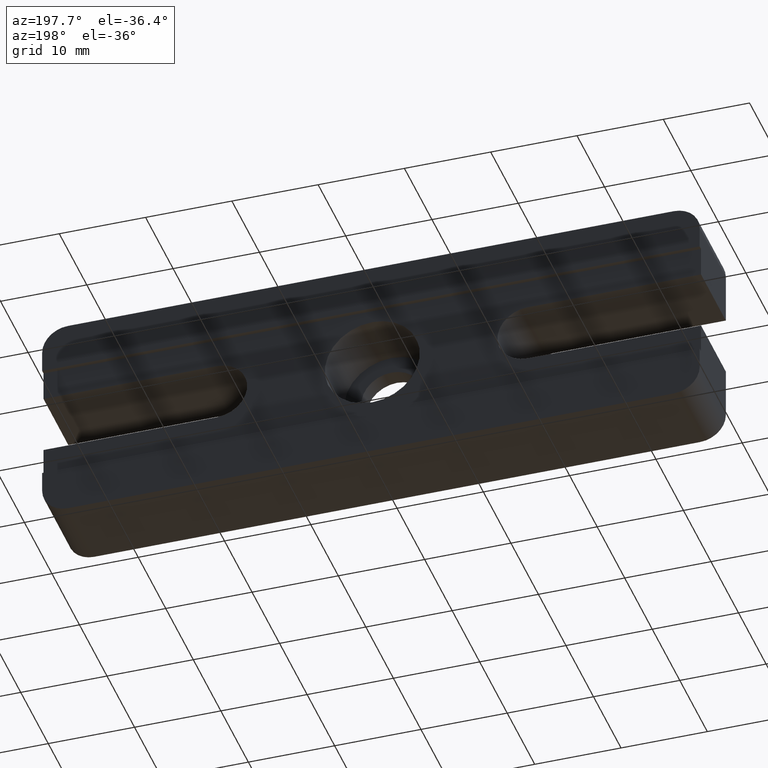
[diagram: clean part render]
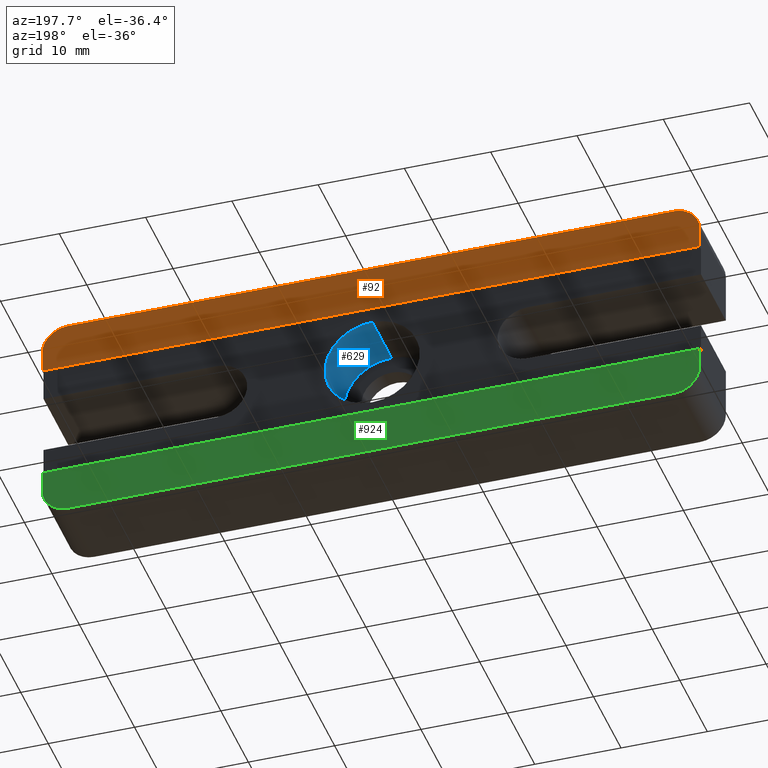
[diagram: same view with three faces highlighted in distinct colors, each labeled with its STEP entity id]
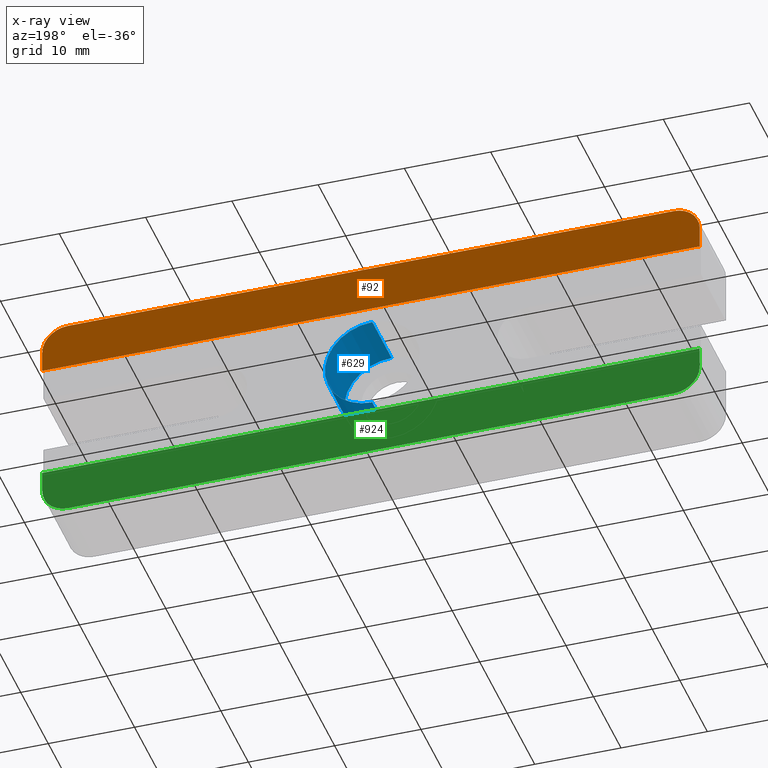
[diagram: x-ray of the same camera — body ghosted, the three highlighted faces saturated]
A machine part, auxiliary view with three faces highlighted in distinct colors.
The next image is the same camera in x-ray (body ghosted, the three faces saturated) — at least one of them is partly hidden behind the body in this view.
Their STEP definitions:

[orange] entity #92 — the highlighted planar face has unit normal (0, 1, -0).
#15 = DIRECTION ( 'NONE',  ( 0.0000000000000000000, 1.000000000000000000, -0.0000000000000000000 ) ) ;
#25 = EDGE_LOOP ( 'NONE', ( #569, #461, #436, #541, #184, #697 ) ) ;
#62 = FACE_OUTER_BOUND ( 'NONE', #25, .T. ) ;
#66 = CARTESIAN_POINT ( 'NONE',  ( 35.09999999999998000, 9.500000000000000000, 12.49999999999999800 ) ) ;
#70 = EDGE_CURVE ( 'NONE', #885, #194, #199, .T. ) ;
#88 = CARTESIAN_POINT ( 'NONE',  ( 35.09999999999998000, 9.500000000000000000, 9.499999999999916500 ) ) ;
#92 = ADVANCED_FACE ( 'NONE', ( #62 ), #868, .T. ) ;
#118 = DIRECTION ( 'NONE',  ( 1.156482317317872100E-014, 0.0000000000000000000, 1.000000000000000000 ) ) ;
#120 = AXIS2_PLACEMENT_3D ( 'NONE', #549, #891, #900 ) ;
#121 = EDGE_CURVE ( 'NONE', #677, #427, #131, .T. ) ;
#124 = VECTOR ( 'NONE', #507, 1000.000000000000000 ) ;
#131 = LINE ( 'NONE', #788, #124 ) ;
#147 = DIRECTION ( 'NONE',  ( 0.0000000000000000000, 1.000000000000000000, -0.0000000000000000000 ) ) ;
#155 = CARTESIAN_POINT ( 'NONE',  ( 38.09999999999991600, 9.500000000000000000, 7.000000000000004400 ) ) ;
#161 = DIRECTION ( 'NONE',  ( 1.000000000000000000, 0.0000000000000000000, 9.884464250580091000E-017 ) ) ;
#184 = ORIENTED_EDGE ( 'NONE', *, *, #70, .T. ) ;
#194 = VERTEX_POINT ( 'NONE', #384 ) ;
#199 = CIRCLE ( 'NONE', #360, 3.000000000000080800 ) ;
#221 = LINE ( 'NONE', #632, #522 ) ;
#242 = EDGE_CURVE ( 'NONE', #922, #885, #833, .T. ) ;
#249 = CARTESIAN_POINT ( 'NONE',  ( -38.10000000000006500, 9.500000000000000000, 9.499999999999994700 ) ) ;
#255 = CIRCLE ( 'NONE', #120, 2.999999999999995600 ) ;
#278 = EDGE_CURVE ( 'NONE', #895, #922, #255, .T. ) ;
#360 = AXIS2_PLACEMENT_3D ( 'NONE', #88, #147, #707 ) ;
#361 = DIRECTION ( 'NONE',  ( 0.0000000000000000000, 0.0000000000000000000, 1.000000000000000000 ) ) ;
#384 = CARTESIAN_POINT ( 'NONE',  ( 38.10000000000005800, 9.500000000000000000, 9.499999999999916500 ) ) ;
#427 = VERTEX_POINT ( 'NONE', #155 ) ;
#436 = ORIENTED_EDGE ( 'NONE', *, *, #278, .T. ) ;
#438 = CARTESIAN_POINT ( 'NONE',  ( -62.51947198304053200, 9.500000000000000000, 2.020352918042384900E-015 ) ) ;
#461 = ORIENTED_EDGE ( 'NONE', *, *, #670, .T. ) ;
#507 = DIRECTION ( 'NONE',  ( 1.000000000000000000, 0.0000000000000000000, 0.0000000000000000000 ) ) ;
#522 = VECTOR ( 'NONE', #701, 1000.000000000000000 ) ;
#541 = ORIENTED_EDGE ( 'NONE', *, *, #242, .T. ) ;
#549 = CARTESIAN_POINT ( 'NONE',  ( -35.10000000000006500, 9.500000000000000000, 9.499999999999994700 ) ) ;
#569 = ORIENTED_EDGE ( 'NONE', *, *, #121, .F. ) ;
#585 = CARTESIAN_POINT ( 'NONE',  ( -38.10000000000017200, 9.500000000000000000, -2.803865225482112100E-013 ) ) ;
#586 = CARTESIAN_POINT ( 'NONE',  ( -62.51947198304053200, 9.500000000000000000, 12.49999999999998900 ) ) ;
#632 = CARTESIAN_POINT ( 'NONE',  ( 38.10000000000017200, 9.500000000000000000, 1.282031394306783400E-012 ) ) ;
#661 = CARTESIAN_POINT ( 'NONE',  ( -35.10000000000006500, 9.500000000000000000, 12.49999999999999300 ) ) ;
#664 = CARTESIAN_POINT ( 'NONE',  ( -38.10000000000009400, 9.500000000000000000, 7.000000000000004400 ) ) ;
#670 = EDGE_CURVE ( 'NONE', #677, #895, #685, .T. ) ;
#677 = VERTEX_POINT ( 'NONE', #664 ) ;
#685 = LINE ( 'NONE', #585, #879 ) ;
#697 = ORIENTED_EDGE ( 'NONE', *, *, #839, .F. ) ;
#701 = DIRECTION ( 'NONE',  ( -1.272130549049676300E-014, 0.0000000000000000000, 1.000000000000000000 ) ) ;
#707 = DIRECTION ( 'NONE',  ( 0.0000000000000000000, 0.0000000000000000000, 1.000000000000000000 ) ) ;
#749 = AXIS2_PLACEMENT_3D ( 'NONE', #438, #15, #361 ) ;
#788 = CARTESIAN_POINT ( 'NONE',  ( -38.10000000000007200, 9.500000000000000000, 7.000000000000004400 ) ) ;
#806 = VECTOR ( 'NONE', #161, 1000.000000000000000 ) ;
#833 = LINE ( 'NONE', #586, #806 ) ;
#839 = EDGE_CURVE ( 'NONE', #427, #194, #221, .T. ) ;
#868 = PLANE ( 'NONE',  #749 ) ;
#879 = VECTOR ( 'NONE', #118, 1000.000000000000000 ) ;
#885 = VERTEX_POINT ( 'NONE', #66 ) ;
#891 = DIRECTION ( 'NONE',  ( 0.0000000000000000000, 1.000000000000000000, -0.0000000000000000000 ) ) ;
#895 = VERTEX_POINT ( 'NONE', #249 ) ;
#900 = DIRECTION ( 'NONE',  ( 0.0000000000000000000, 0.0000000000000000000, 1.000000000000000000 ) ) ;
#922 = VERTEX_POINT ( 'NONE', #661 ) ;

[blue] entity #629 — the highlighted cylindrical surface (partial cylindrical patch) has radius 5.5 mm, axis along (-0, 1, -0).
#27 = CARTESIAN_POINT ( 'NONE',  ( 0.0000000000000000000, 2.000000000000000000, 5.500000000000000000 ) ) ;
#47 = CARTESIAN_POINT ( 'NONE',  ( 6.735557395310442000E-016, 9.000000000000000000, -5.500000000000000000 ) ) ;
#87 = CARTESIAN_POINT ( 'NONE',  ( 0.0000000000000000000, 9.000000000000000000, 5.500000000000000000 ) ) ;
#91 = CARTESIAN_POINT ( 'NONE',  ( 0.0000000000000000000, 2.000000000000000000, 0.0000000000000000000 ) ) ;
#148 = EDGE_CURVE ( 'NONE', #313, #773, #493, .T. ) ;
#163 = EDGE_CURVE ( 'NONE', #196, #619, #726, .T. ) ;
#176 = AXIS2_PLACEMENT_3D ( 'NONE', #91, #881, #719 ) ;
#196 = VERTEX_POINT ( 'NONE', #27 ) ;
#211 = ORIENTED_EDGE ( 'NONE', *, *, #689, .F. ) ;
#231 = CARTESIAN_POINT ( 'NONE',  ( 6.735557395310442000E-016, 2.000000000000000000, -5.500000000000000000 ) ) ;
#251 = DIRECTION ( 'NONE',  ( -0.0000000000000000000, -1.000000000000000000, -0.0000000000000000000 ) ) ;
#305 = AXIS2_PLACEMENT_3D ( 'NONE', #355, #499, #759 ) ;
#313 = VERTEX_POINT ( 'NONE', #614 ) ;
#333 = DIRECTION ( 'NONE',  ( 0.0000000000000000000, 0.0000000000000000000, 1.000000000000000000 ) ) ;
#355 = CARTESIAN_POINT ( 'NONE',  ( 0.0000000000000000000, 2.000000000000000000, 0.0000000000000000000 ) ) ;
#462 = CARTESIAN_POINT ( 'NONE',  ( 0.0000000000000000000, 2.000000000000000000, 5.500000000000000000 ) ) ;
#474 = ORIENTED_EDGE ( 'NONE', *, *, #163, .T. ) ;
#493 = LINE ( 'NONE', #231, #564 ) ;
#494 = CYLINDRICAL_SURFACE ( 'NONE', #176, 5.500000000000000000 ) ;
#499 = DIRECTION ( 'NONE',  ( 0.0000000000000000000, 1.000000000000000000, 0.0000000000000000000 ) ) ;
#525 = VECTOR ( 'NONE', #887, 1000.000000000000000 ) ;
#564 = VECTOR ( 'NONE', #790, 1000.000000000000000 ) ;
#597 = EDGE_LOOP ( 'NONE', ( #647, #849, #474, #211 ) ) ;
#614 = CARTESIAN_POINT ( 'NONE',  ( 6.735557395310442000E-016, 2.000000000000000000, -5.500000000000000000 ) ) ;
#619 = VERTEX_POINT ( 'NONE', #87 ) ;
#629 = ADVANCED_FACE ( 'NONE', ( #691 ), #494, .F. ) ;
#647 = ORIENTED_EDGE ( 'NONE', *, *, #148, .F. ) ;
#681 = CARTESIAN_POINT ( 'NONE',  ( 0.0000000000000000000, 9.000000000000000000, 0.0000000000000000000 ) ) ;
#689 = EDGE_CURVE ( 'NONE', #773, #619, #867, .T. ) ;
#691 = FACE_OUTER_BOUND ( 'NONE', #597, .T. ) ;
#719 = DIRECTION ( 'NONE',  ( 0.0000000000000000000, 0.0000000000000000000, 1.000000000000000000 ) ) ;
#726 = LINE ( 'NONE', #462, #525 ) ;
#759 = DIRECTION ( 'NONE',  ( 0.0000000000000000000, 0.0000000000000000000, 1.000000000000000000 ) ) ;
#773 = VERTEX_POINT ( 'NONE', #47 ) ;
#785 = EDGE_CURVE ( 'NONE', #196, #313, #911, .T. ) ;
#790 = DIRECTION ( 'NONE',  ( -0.0000000000000000000, 1.000000000000000000, -0.0000000000000000000 ) ) ;
#830 = AXIS2_PLACEMENT_3D ( 'NONE', #681, #251, #333 ) ;
#849 = ORIENTED_EDGE ( 'NONE', *, *, #785, .F. ) ;
#867 = CIRCLE ( 'NONE', #830, 5.500000000000000000 ) ;
#881 = DIRECTION ( 'NONE',  ( -0.0000000000000000000, 1.000000000000000000, -0.0000000000000000000 ) ) ;
#887 = DIRECTION ( 'NONE',  ( -0.0000000000000000000, 1.000000000000000000, -0.0000000000000000000 ) ) ;
#911 = CIRCLE ( 'NONE', #305, 5.500000000000000000 ) ;

[green] entity #924 — the highlighted planar face has unit normal (0, 1, -0).
#46 = FACE_OUTER_BOUND ( 'NONE', #207, .T. ) ;
#112 = DIRECTION ( 'NONE',  ( 0.0000000000000000000, 1.000000000000000000, -0.0000000000000000000 ) ) ;
#152 = ORIENTED_EDGE ( 'NONE', *, *, #556, .F. ) ;
#166 = CARTESIAN_POINT ( 'NONE',  ( -35.10000000000005800, 9.500000000000000000, -12.49999999999999100 ) ) ;
#186 = CARTESIAN_POINT ( 'NONE',  ( -38.10000000000007200, 9.500000000000000000, -6.999999999999995600 ) ) ;
#193 = VECTOR ( 'NONE', #254, 1000.000000000000000 ) ;
#207 = EDGE_LOOP ( 'NONE', ( #798, #152, #517, #872, #504, #925 ) ) ;
#236 = LINE ( 'NONE', #797, #683 ) ;
#241 = VERTEX_POINT ( 'NONE', #591 ) ;
#254 = DIRECTION ( 'NONE',  ( -1.000000000000000000, -0.0000000000000000000, 2.276539994720219800E-016 ) ) ;
#268 = EDGE_CURVE ( 'NONE', #588, #608, #700, .T. ) ;
#338 = LINE ( 'NONE', #804, #412 ) ;
#348 = VERTEX_POINT ( 'NONE', #733 ) ;
#356 = EDGE_CURVE ( 'NONE', #608, #348, #455, .T. ) ;
#357 = CARTESIAN_POINT ( 'NONE',  ( 38.09999999999991600, 9.500000000000000000, -7.000000000000013300 ) ) ;
#379 = CARTESIAN_POINT ( 'NONE',  ( 35.10000000000005800, 9.500000000000000000, -12.50000000000000000 ) ) ;
#381 = DIRECTION ( 'NONE',  ( 0.0000000000000000000, 1.000000000000000000, -0.0000000000000000000 ) ) ;
#382 = CARTESIAN_POINT ( 'NONE',  ( 35.10000000000005800, 9.500000000000000000, -9.500000000000000000 ) ) ;
#412 = VECTOR ( 'NONE', #593, 1000.000000000000000 ) ;
#449 = DIRECTION ( 'NONE',  ( 0.0000000000000000000, 1.000000000000000000, -0.0000000000000000000 ) ) ;
#450 = DIRECTION ( 'NONE',  ( -1.000000000000000000, 0.0000000000000000000, 1.482669637587012100E-016 ) ) ;
#455 = CIRCLE ( 'NONE', #850, 3.000000000000003600 ) ;
#460 = PLANE ( 'NONE',  #489 ) ;
#473 = DIRECTION ( 'NONE',  ( 0.0000000000000000000, 0.0000000000000000000, 1.000000000000000000 ) ) ;
#488 = VERTEX_POINT ( 'NONE', #357 ) ;
#489 = AXIS2_PLACEMENT_3D ( 'NONE', #808, #381, #739 ) ;
#504 = ORIENTED_EDGE ( 'NONE', *, *, #356, .T. ) ;
#517 = ORIENTED_EDGE ( 'NONE', *, *, #542, .T. ) ;
#518 = DIRECTION ( 'NONE',  ( 0.0000000000000000000, 0.0000000000000000000, 1.000000000000000000 ) ) ;
#542 = EDGE_CURVE ( 'NONE', #241, #588, #754, .T. ) ;
#543 = CARTESIAN_POINT ( 'NONE',  ( -35.10000000000005800, 9.500000000000000000, -9.499999999999992900 ) ) ;
#556 = EDGE_CURVE ( 'NONE', #241, #488, #338, .T. ) ;
#563 = VECTOR ( 'NONE', #450, 1000.000000000000000 ) ;
#565 = LINE ( 'NONE', #186, #193 ) ;
#588 = VERTEX_POINT ( 'NONE', #379 ) ;
#590 = CARTESIAN_POINT ( 'NONE',  ( -38.10000000000007200, 9.500000000000000000, -6.999999999999995600 ) ) ;
#591 = CARTESIAN_POINT ( 'NONE',  ( 38.10000000000006500, 9.500000000000000000, -9.500000000000000000 ) ) ;
#592 = DIRECTION ( 'NONE',  ( -1.040834085586088000E-014, 0.0000000000000000000, 1.000000000000000000 ) ) ;
#593 = DIRECTION ( 'NONE',  ( 1.156482317317874300E-014, 0.0000000000000000000, 1.000000000000000000 ) ) ;
#602 = VERTEX_POINT ( 'NONE', #590 ) ;
#608 = VERTEX_POINT ( 'NONE', #166 ) ;
#683 = VECTOR ( 'NONE', #592, 1000.000000000000000 ) ;
#700 = LINE ( 'NONE', #800, #563 ) ;
#733 = CARTESIAN_POINT ( 'NONE',  ( -38.10000000000008000, 9.500000000000000000, -9.499999999999992900 ) ) ;
#739 = DIRECTION ( 'NONE',  ( 0.0000000000000000000, 0.0000000000000000000, 1.000000000000000000 ) ) ;
#753 = EDGE_CURVE ( 'NONE', #488, #602, #565, .T. ) ;
#754 = CIRCLE ( 'NONE', #774, 3.000000000000001800 ) ;
#774 = AXIS2_PLACEMENT_3D ( 'NONE', #382, #449, #518 ) ;
#797 = CARTESIAN_POINT ( 'NONE',  ( -38.10000000000017200, 9.500000000000000000, 2.561865408376714600E-013 ) ) ;
#798 = ORIENTED_EDGE ( 'NONE', *, *, #753, .F. ) ;
#800 = CARTESIAN_POINT ( 'NONE',  ( -62.51947198304053200, 9.500000000000000000, -12.49999999999998800 ) ) ;
#804 = CARTESIAN_POINT ( 'NONE',  ( 38.10000000000017200, 9.500000000000000000, -1.161626048344436100E-012 ) ) ;
#808 = CARTESIAN_POINT ( 'NONE',  ( -62.51947198304053200, 9.500000000000000000, 2.020352918042384900E-015 ) ) ;
#850 = AXIS2_PLACEMENT_3D ( 'NONE', #543, #112, #473 ) ;
#872 = ORIENTED_EDGE ( 'NONE', *, *, #268, .T. ) ;
#915 = EDGE_CURVE ( 'NONE', #348, #602, #236, .T. ) ;
#924 = ADVANCED_FACE ( 'NONE', ( #46 ), #460, .T. ) ;
#925 = ORIENTED_EDGE ( 'NONE', *, *, #915, .T. ) ;